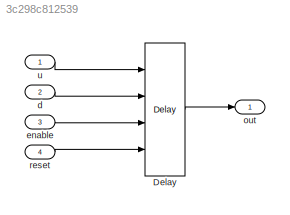
MODEL slx_3c298c812539
KIND model
CONFIG AbsTol = auto
CONFIG EnableMultiTasking = on
CONFIG FixedStep = 0.200000
CONFIG MaxStep = auto
CONFIG MinStep = auto
CONFIG RelTol = 1e-3
CONFIG SampleTimeConstraint = Unconstrained
CONFIG Solver = FixedStepDiscrete
CONFIG SolverName = FixedStepDiscrete
CONFIG StartTime = 0.0
CONFIG StopTime = 10.0
BLOCK [Delay] Delay
  DelayLengthSource = Input port
  ExternalReset = Rising
  InputPortMap = u0,p1,e6,r5
  Ports = [4, 1]
  ShowEnablePort = on
BLOCK [Inport] d
  IconDisplay = Port number
  Port = 2
BLOCK [Inport] enable
  IconDisplay = Port number
  Port = 3
BLOCK [Outport] out
  IconDisplay = Port number
BLOCK [Inport] reset
  IconDisplay = Port number
  Port = 4
BLOCK [Inport] u
  IconDisplay = Port number
LINE Delay:1 -> out:1
LINE d:1 -> Delay:2
LINE enable:1 -> Delay:3
LINE reset:1 -> Delay:4
LINE u:1 -> Delay:1
